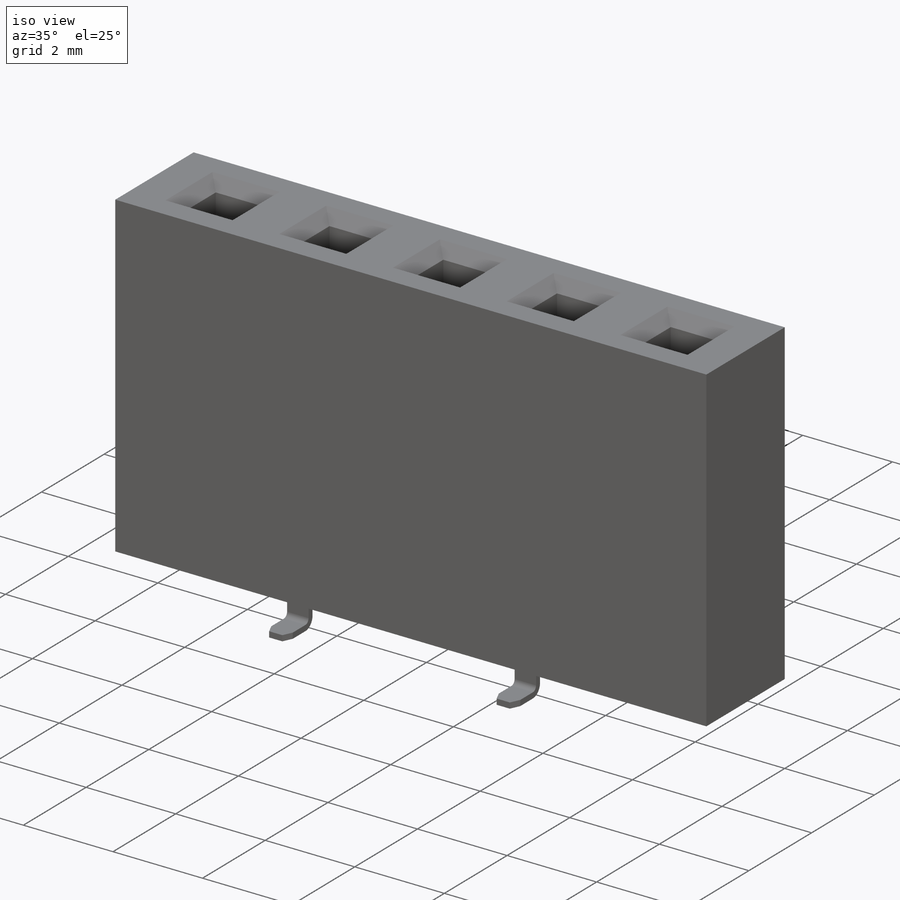
[diagram: iso view]
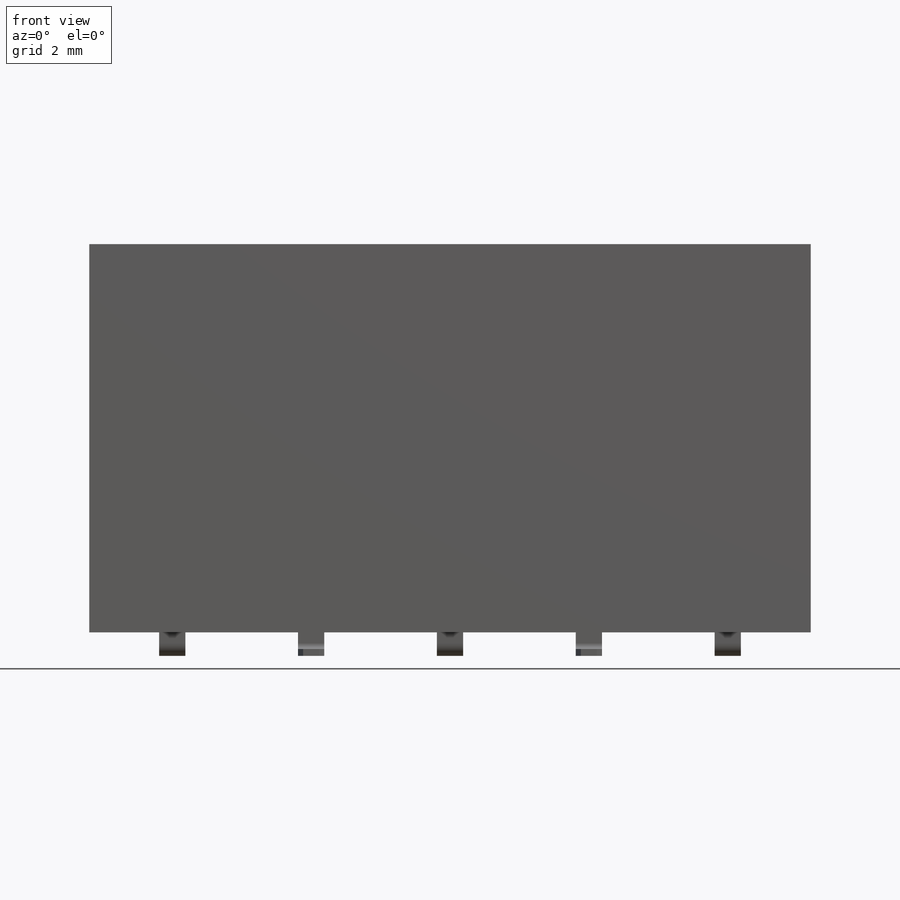
[diagram: front view]
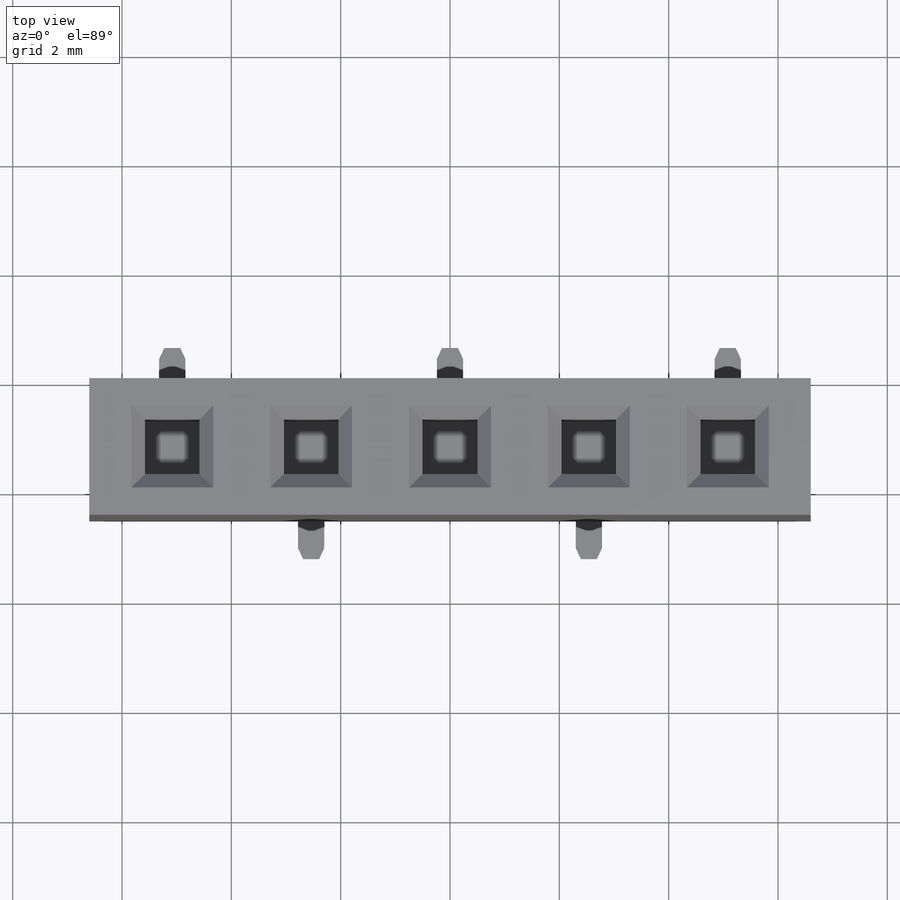
[diagram: top view]
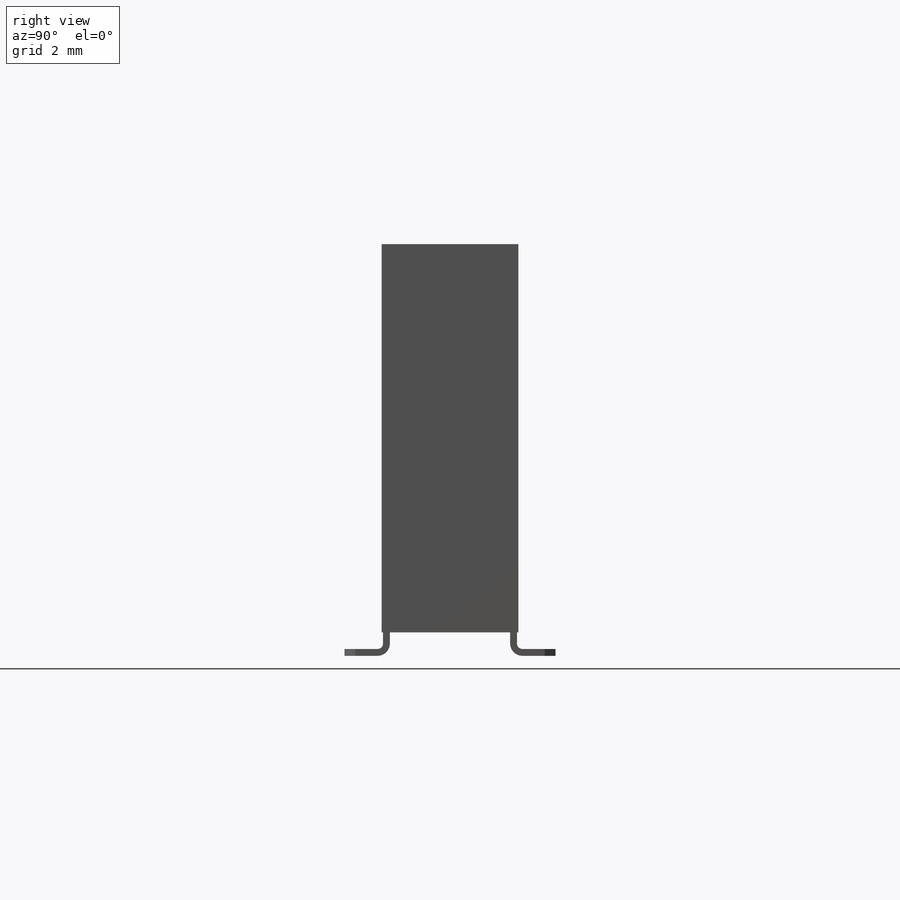
[diagram: right view]
SOLIDWORKS PART (.sldprt)
format: sldprt  version: not decoded by parser v0  size: 531,456 bytes
history: native  units: mm
features: sketch x26, sheet_metal_op x18, chamfer x3, pattern_linear x3, plane x2, material x1, extrude x1, cut_extrude x1 + 10 further entries (+13 scaffold rows collapsed; 10 parser-record rows omitted)
feature tree (88):
  scaffold x13  (default folders/planes/origin — collapsed)
  material  "Material <not specified>"
  sketch  "Sketch1"  dims[D1=7.1mm length=13.2mm]
  extrude  "Boss-Extrude1"  Depth=2.5mm
  sketch  "Sketch2"  dims[c1.D1=1.52mm c1.D2=1.0mm c1.D3=1.0mm c2.D1=2.54mm c2.D4=1.02mm c3.D1=1.52mm]
  cut_extrude  "Cut-Extrude1"  Depth=2.5mm
  chamfer  "Chamfer1"  Distance=0.25mm Angle=45deg
  pattern_linear  "LPattern6"  Count1=5 Spacing1=2.54mm Spacing2=10mm
  plane  "big_pad_side"  Offset=1.52mm
  plane  "sm_pad_side"  Offset=2.54mm
  sketch  "Sketch5"  dims[c1.D1=0.43mm c1.D2=0.15mm c1.D3=0.825mm c2.D2=0.15mm c2.D3=0.83mm c2.D1=0.1mm c3.D2=0.5]
  sheet_metal_op  "Base-Flange2"
  sketch  "Sketch22"  dims[c1.D1=0.15mm c1.D2=0.43mm c1.D3=0.83mm c1.BaseBend3=0.0 c2.D1=0.225mm c2.D4=90.0deg c3.D1=0.1mm c3.D2=0.24mm c3.D3=0.24mm]
  chamfer  "Chamfer3"  Distance=0.2mm Angle=25deg
  chamfer  "Chamfer4"  Distance=0.2mm Angle=25deg
  pattern_linear  "LPattern4"  Spacing1=0.1mm Spacing2=0mm  [1 undecoded]
  sheet_metal_op  "DerivedBend14"
  sheet_metal_op  "DerivedBend15"
  sheet_metal_op  "DerivedBend16"
  pattern_linear  "LPattern3"  [2 undecoded]
  sheet_metal_op  "DerivedBend9"
  sheet_metal_op  "DerivedBend10"
  sheet_metal_op  "DerivedBend11"
  sheet_metal_op  "DerivedBend12"
  sketch  "Bend-Lines3"
  sketch  "Bounding-Box3"
  sheet_metal_op  "Sheet-Metal4"
  "Flat-Pattern4"
  sketch  "Bend-Lines4"
  sketch  "Bounding-Box4"
  parser-record x10  (decoder bookkeeping rows leaked as tree rows — omitted from the tree; the rows remain in map.json)
  sheet_metal_op  "Sheet-Metal9"
  "Flat-Pattern9"
  sketch  "Bend-Lines9"
  sketch  "Bounding-Box9"
  sheet_metal_op  "Sheet-Metal14"
  "Flat-Pattern14"
  sketch  "Bend-Lines14"
  sketch  "Bounding-Box14"
  sheet_metal_op  "Sheet-Metal15"
  "Flat-Pattern15"
  sketch  "Bend-Lines15"
  sketch  "Bounding-Box15"
  sheet_metal_op  "Sheet-Metal16"
  "Flat-Pattern16"
  sketch  "Bend-Lines16"
  sketch  "Bounding-Box16"
  sheet_metal_op  "Sheet-Metal17"
  "Flat-Pattern17"
  sketch  "Bend-Lines17"
  sketch  "Bounding-Box17"
  sheet_metal_op  "Sheet-Metal18"
  "Flat-Pattern18"
  sketch  "Bend-Lines18"
  sketch  "Bounding-Box18"
  sheet_metal_op  "Sheet-Metal19"
  "Flat-Pattern19"
  sketch  "Bend-Lines19"
  sketch  "Bounding-Box19"
  sheet_metal_op  "Sheet-Metal20"
  "Flat-Pattern20"
  sketch  "Bend-Lines20"
  sketch  "Bounding-Box20"
  sheet_metal_op  "Sheet-Metal21"
  "Flat-Pattern21"
  sketch  "Bend-Lines21"
  sketch  "Bounding-Box21"
decode coverage: 11 of 52 modeling features carry decoded parameters; 10 rows unclassified (native names shown)
note: 3 parameter values undecoded
note: suppression state not decoded; provenance and decode notes live in map.json
